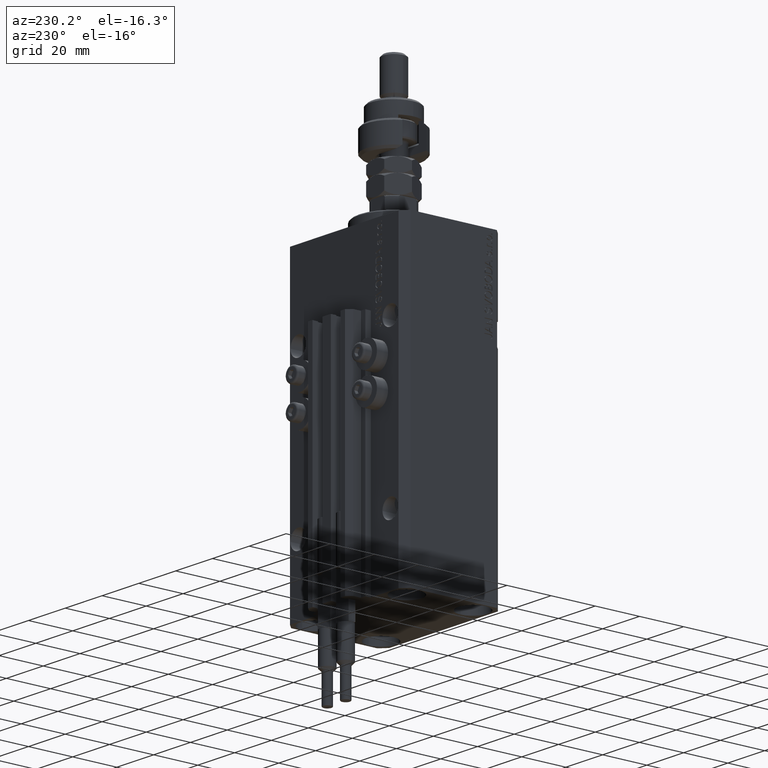
[diagram: clean part render]
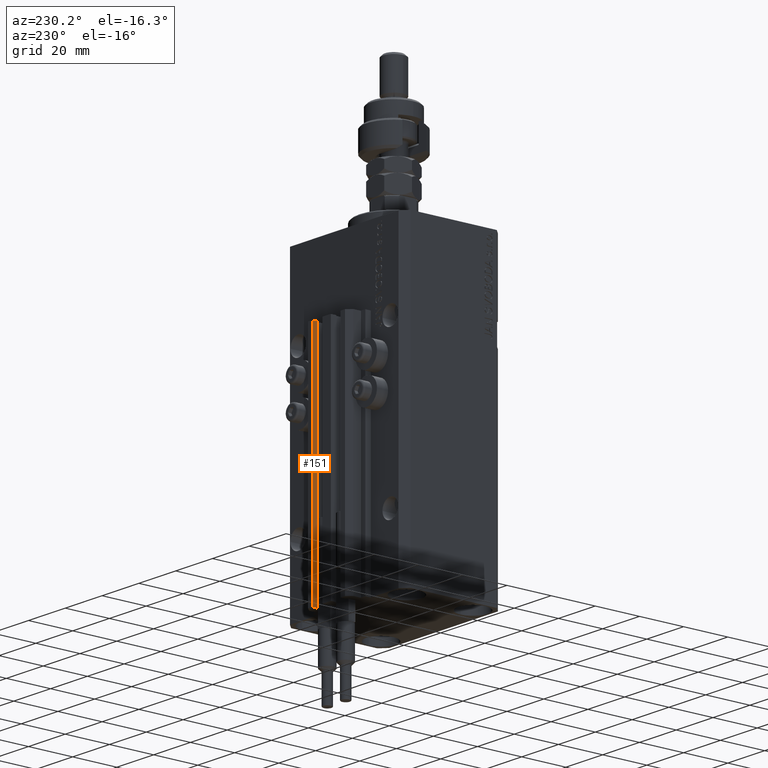
[diagram: same view with one face highlighted and labeled with its STEP entity id]
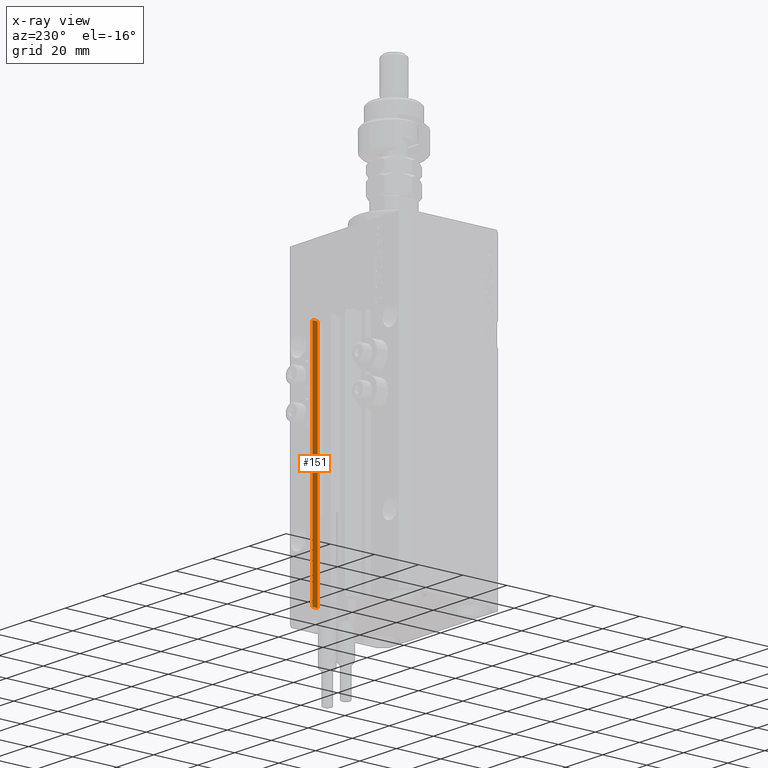
[diagram: x-ray of the same camera — body ghosted, the highlighted face saturated]
A machine part, auxiliary view. The second image highlights one B-rep face of the part: STEP entity #151.
The next image is the same camera in x-ray: the body ghosted, the highlighted face saturated — about 0% of this face is hidden behind the body in this view.
In plain terms, the highlighted planar face has unit normal (-1, -0, 0).
Its self-contained STEP definition (entity closure, byte-faithful):
#151 = ADVANCED_FACE ( 'NONE', ( #43248 ), #12567, .T. ) ;
#1256 = CARTESIAN_POINT ( 'NONE',  ( 7.649999999999995914, 28.09999999999950404, -33.00000000000000000 ) ) ;
#4976 = EDGE_CURVE ( 'NONE', #47053, #22531, #21473, .T. ) ;
#5651 = DIRECTION ( 'NONE',  ( 3.614007241618365534E-16, -1.000000000000000000, 0.000000000000000000 ) ) ;
#6167 = EDGE_CURVE ( 'NONE', #22531, #44958, #30040, .T. ) ;
#8683 = CARTESIAN_POINT ( 'NONE',  ( 7.649999999999995026, 30.49999999999949196, -137.0000000000000000 ) ) ;
#11287 = DIRECTION ( 'NONE',  ( 0.000000000000000000, 0.000000000000000000, 1.000000000000000000 ) ) ;
#12567 = PLANE ( 'NONE',  #20356 ) ;
#14151 = VERTEX_POINT ( 'NONE', #43619 ) ;
#15616 = ORIENTED_EDGE ( 'NONE', *, *, #6167, .F. ) ;
#15688 = LINE ( 'NONE', #27887, #23838 ) ;
#15706 = DIRECTION ( 'NONE',  ( -1.000000000000000000, -3.614007241618365534E-16, 0.000000000000000000 ) ) ;
#16308 = DIRECTION ( 'NONE',  ( 3.614007241618365534E-16, -1.000000000000000000, 0.000000000000000000 ) ) ;
#18699 = ORIENTED_EDGE ( 'NONE', *, *, #27678, .T. ) ;
#19638 = ORIENTED_EDGE ( 'NONE', *, *, #4976, .F. ) ;
#20356 = AXIS2_PLACEMENT_3D ( 'NONE', #8683, #15706, #24516 ) ;
#20460 = LINE ( 'NONE', #39962, #27928 ) ;
#21473 = LINE ( 'NONE', #42752, #30523 ) ;
#22531 = VERTEX_POINT ( 'NONE', #41604 ) ;
#23838 = VECTOR ( 'NONE', #11287, 1000.000000000000000 ) ;
#24516 = DIRECTION ( 'NONE',  ( 3.614007241618365534E-16, -1.000000000000000000, 0.000000000000000000 ) ) ;
#24868 = EDGE_CURVE ( 'NONE', #47053, #14151, #20460, .T. ) ;
#27678 = EDGE_CURVE ( 'NONE', #14151, #44958, #15688, .T. ) ;
#27887 = CARTESIAN_POINT ( 'NONE',  ( 7.649999999999995914, 28.09999999999950404, -137.0000000000000000 ) ) ;
#27928 = VECTOR ( 'NONE', #16308, 1000.000000000000000 ) ;
#30040 = LINE ( 'NONE', #37599, #44694 ) ;
#30523 = VECTOR ( 'NONE', #31310, 1000.000000000000000 ) ;
#30796 = CARTESIAN_POINT ( 'NONE',  ( 7.649999999999995026, 30.49999999999949196, -137.0000000000000000 ) ) ;
#31310 = DIRECTION ( 'NONE',  ( 0.000000000000000000, 0.000000000000000000, 1.000000000000000000 ) ) ;
#37599 = CARTESIAN_POINT ( 'NONE',  ( 7.649999999999995026, 30.49999999999949196, -33.00000000000000000 ) ) ;
#38132 = EDGE_LOOP ( 'NONE', ( #15616, #19638, #42260, #18699 ) ) ;
#39962 = CARTESIAN_POINT ( 'NONE',  ( 7.649999999999995026, 30.49999999999949196, -137.0000000000000000 ) ) ;
#41604 = CARTESIAN_POINT ( 'NONE',  ( 7.649999999999995026, 30.49999999999949196, -33.00000000000000000 ) ) ;
#42260 = ORIENTED_EDGE ( 'NONE', *, *, #24868, .T. ) ;
#42752 = CARTESIAN_POINT ( 'NONE',  ( 7.649999999999995026, 30.49999999999949196, -137.0000000000000000 ) ) ;
#43248 = FACE_OUTER_BOUND ( 'NONE', #38132, .T. ) ;
#43619 = CARTESIAN_POINT ( 'NONE',  ( 7.649999999999995914, 28.09999999999950404, -137.0000000000000000 ) ) ;
#44694 = VECTOR ( 'NONE', #5651, 1000.000000000000000 ) ;
#44958 = VERTEX_POINT ( 'NONE', #1256 ) ;
#47053 = VERTEX_POINT ( 'NONE', #30796 ) ;